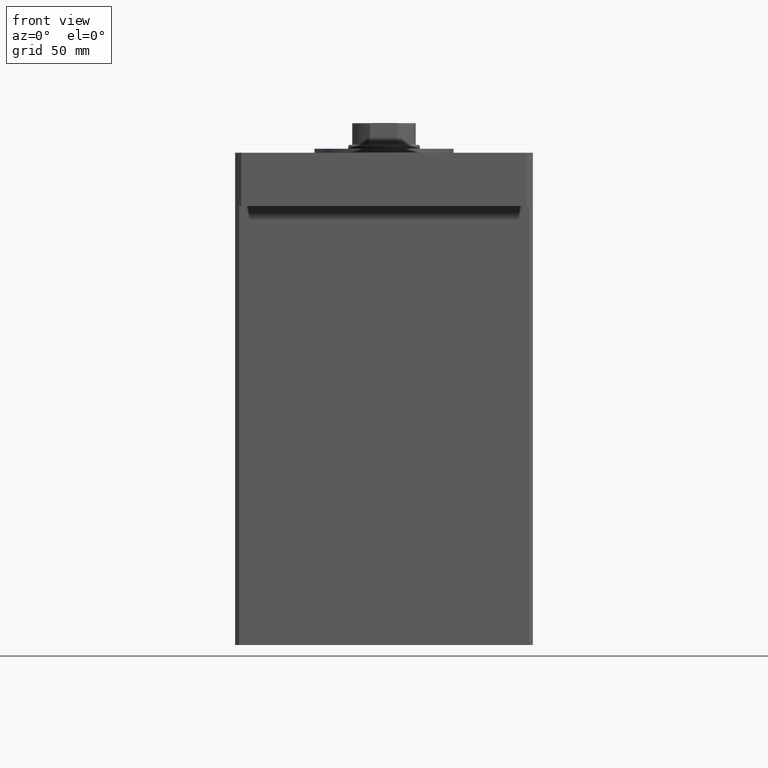
[diagram: clean part render]
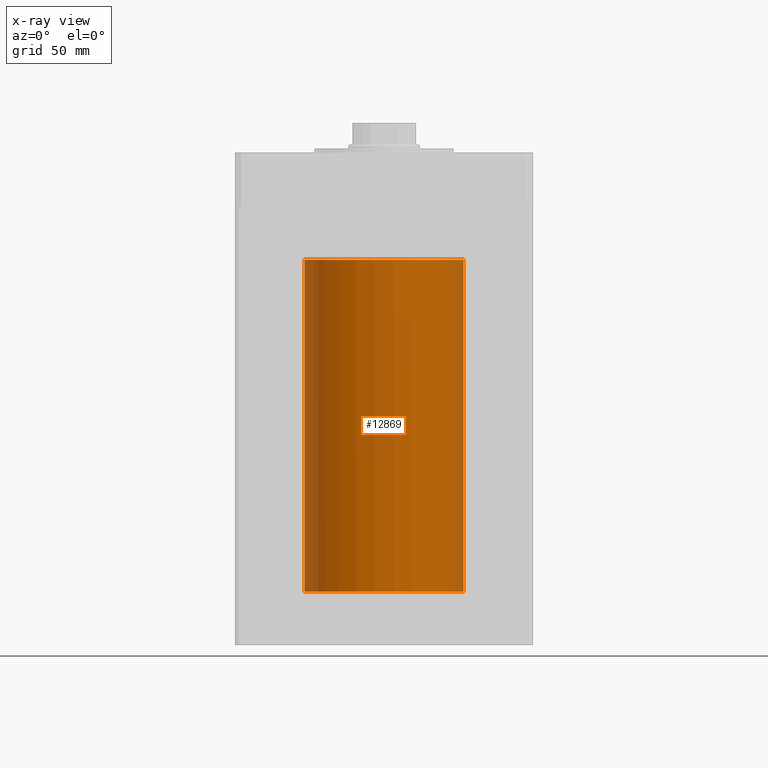
[diagram: x-ray — body ghosted, one internal face saturated and labeled with its STEP entity id]
A machine part, front view, then the same camera in x-ray: the body is ghosted and one INTERNAL B-rep face — a face not visible from any outside direction — is saturated and labeled: STEP entity #12869.
In plain terms, the highlighted cylindrical surface (partial cylindrical patch) has radius 40 mm, axis along (-0, -0, -1).
Its self-contained STEP definition (entity closure, byte-faithful):
#258 = CIRCLE ( 'NONE', #51333, 40.00000000000000000 ) ;
#1423 = VERTEX_POINT ( 'NONE', #47489 ) ;
#1959 = DIRECTION ( 'NONE',  ( 1.000000000000000000, 0.000000000000000000, 0.000000000000000000 ) ) ;
#2367 = VERTEX_POINT ( 'NONE', #13991 ) ;
#5294 = CARTESIAN_POINT ( 'NONE',  ( -40.00000000000000000, 0.000000000000000000, 0.000000000000000000 ) ) ;
#6020 = DIRECTION ( 'NONE',  ( -0.000000000000000000, 0.000000000000000000, 1.000000000000000000 ) ) ;
#6194 = VECTOR ( 'NONE', #47109, 1000.000000000000000 ) ;
#7283 = CARTESIAN_POINT ( 'NONE',  ( 0.000000000000000000, 0.000000000000000000, 167.0000000000000000 ) ) ;
#9739 = DIRECTION ( 'NONE',  ( -0.000000000000000000, -0.000000000000000000, -1.000000000000000000 ) ) ;
#12284 = EDGE_CURVE ( 'NONE', #32720, #2367, #258, .T. ) ;
#12486 = EDGE_CURVE ( 'NONE', #30070, #1423, #31448, .T. ) ;
#12869 = ADVANCED_FACE ( 'NONE', ( #35618 ), #52148, .F. ) ;
#13112 = ORIENTED_EDGE ( 'NONE', *, *, #36196, .F. ) ;
#13991 = CARTESIAN_POINT ( 'NONE',  ( 40.00000000000000000, 4.898587196589412237E-15, 167.0000000000000000 ) ) ;
#14063 = CARTESIAN_POINT ( 'NONE',  ( -40.00000000000000000, 0.000000000000000000, 167.0000000000000000 ) ) ;
#15031 = CARTESIAN_POINT ( 'NONE',  ( 0.000000000000000000, 0.000000000000000000, 167.0000000000000000 ) ) ;
#16748 = AXIS2_PLACEMENT_3D ( 'NONE', #22163, #30562, #47078 ) ;
#18136 = LINE ( 'NONE', #14063, #6194 ) ;
#22091 = ORIENTED_EDGE ( 'NONE', *, *, #49853, .T. ) ;
#22163 = CARTESIAN_POINT ( 'NONE',  ( 0.000000000000000000, 0.000000000000000000, 0.000000000000000000 ) ) ;
#23055 = CARTESIAN_POINT ( 'NONE',  ( -40.00000000000000000, 0.000000000000000000, 167.0000000000000000 ) ) ;
#24008 = ORIENTED_EDGE ( 'NONE', *, *, #12284, .T. ) ;
#30070 = VERTEX_POINT ( 'NONE', #5294 ) ;
#30562 = DIRECTION ( 'NONE',  ( -0.000000000000000000, 0.000000000000000000, 1.000000000000000000 ) ) ;
#31018 = ORIENTED_EDGE ( 'NONE', *, *, #12486, .F. ) ;
#31448 = CIRCLE ( 'NONE', #16748, 40.00000000000000000 ) ;
#32720 = VERTEX_POINT ( 'NONE', #23055 ) ;
#35618 = FACE_OUTER_BOUND ( 'NONE', #36806, .T. ) ;
#36196 = EDGE_CURVE ( 'NONE', #32720, #30070, #18136, .T. ) ;
#36806 = EDGE_LOOP ( 'NONE', ( #24008, #22091, #31018, #13112 ) ) ;
#38376 = AXIS2_PLACEMENT_3D ( 'NONE', #15031, #52417, #39944 ) ;
#39944 = DIRECTION ( 'NONE',  ( -1.000000000000000000, 0.000000000000000000, 0.000000000000000000 ) ) ;
#41928 = VECTOR ( 'NONE', #9739, 1000.000000000000000 ) ;
#46601 = CARTESIAN_POINT ( 'NONE',  ( 40.00000000000000000, 4.898587196589412237E-15, 167.0000000000000000 ) ) ;
#47078 = DIRECTION ( 'NONE',  ( 1.000000000000000000, 0.000000000000000000, 0.000000000000000000 ) ) ;
#47109 = DIRECTION ( 'NONE',  ( -0.000000000000000000, -0.000000000000000000, -1.000000000000000000 ) ) ;
#47133 = LINE ( 'NONE', #46601, #41928 ) ;
#47489 = CARTESIAN_POINT ( 'NONE',  ( 40.00000000000000000, 4.898587196589412237E-15, 0.000000000000000000 ) ) ;
#49853 = EDGE_CURVE ( 'NONE', #2367, #1423, #47133, .T. ) ;
#51333 = AXIS2_PLACEMENT_3D ( 'NONE', #7283, #6020, #1959 ) ;
#52148 = CYLINDRICAL_SURFACE ( 'NONE', #38376, 40.00000000000000000 ) ;
#52417 = DIRECTION ( 'NONE',  ( -0.000000000000000000, -0.000000000000000000, -1.000000000000000000 ) ) ;